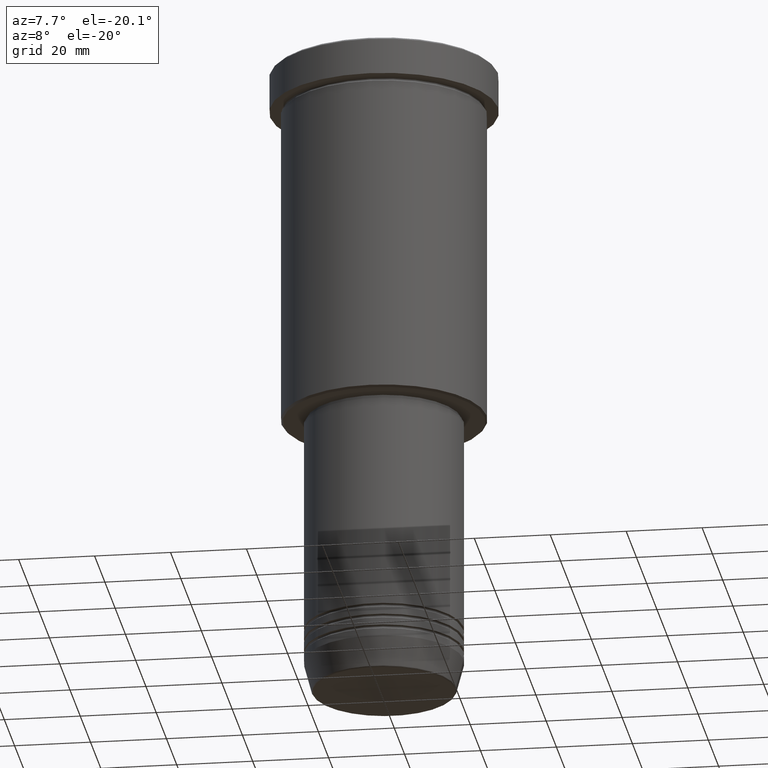
[diagram: clean part render]
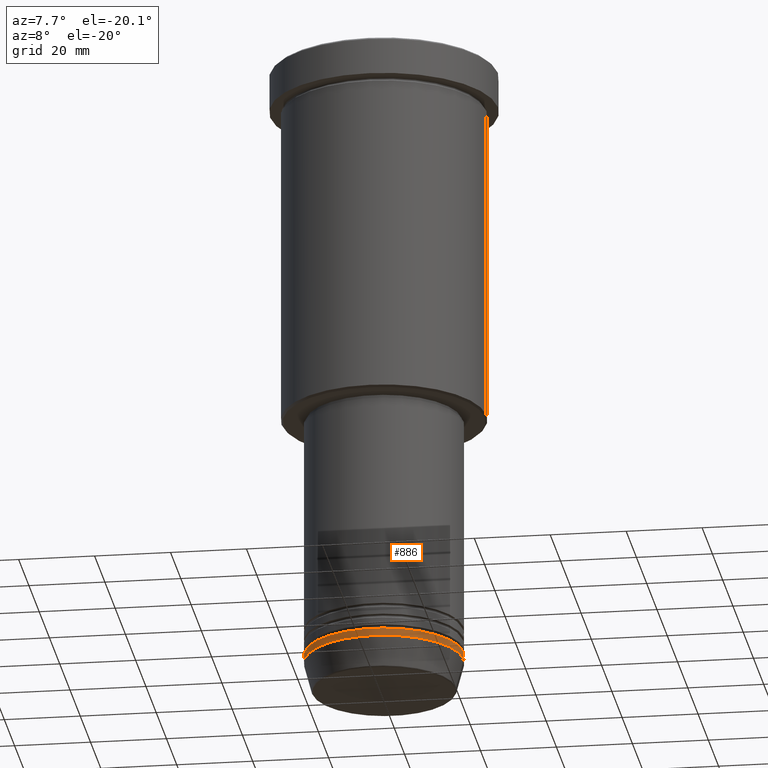
[diagram: same view with one face highlighted and labeled with its STEP entity id]
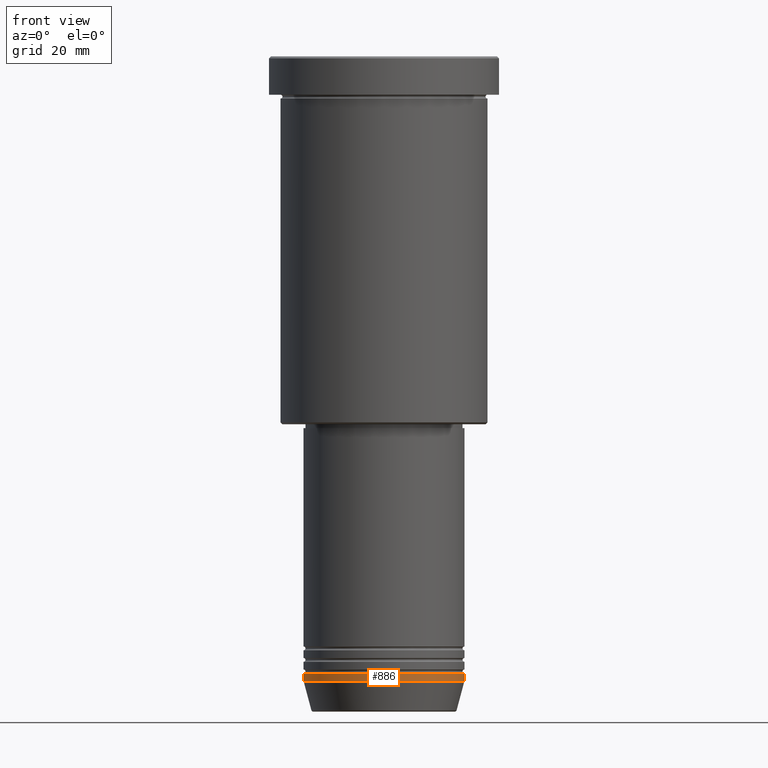
[diagram: same view with one face highlighted and labeled with its STEP entity id]
A machine part, auxiliary view. The second image highlights one B-rep face of the part: STEP entity #886.
A second angle (front view) of the same face is appended — the face is thin or edge-on in the first view.
In plain terms, the highlighted cylindrical surface (partial cylindrical patch) has radius 21 mm, axis along (-0, -0, 1).
Its self-contained STEP definition (entity closure, byte-faithful):
#1 = CIRCLE ( 'NONE', #1009, 21.00000000000000000 ) ;
#27 = CARTESIAN_POINT ( 'NONE',  ( 0.000000000000000000, 0.000000000000000000, 0.000000000000000000 ) ) ;
#73 = LINE ( 'NONE', #439, #1025 ) ;
#100 = LINE ( 'NONE', #283, #311 ) ;
#107 = EDGE_CURVE ( 'NONE', #1064, #795, #787, .T. ) ;
#111 = VERTEX_POINT ( 'NONE', #179 ) ;
#131 = CARTESIAN_POINT ( 'NONE',  ( -21.00000000000000000, 2.571758278209441661E-15, -161.0000000000000000 ) ) ;
#179 = CARTESIAN_POINT ( 'NONE',  ( 21.00000000000000000, 0.000000000000000000, -161.0000000000000000 ) ) ;
#263 = DIRECTION ( 'NONE',  ( 1.000000000000000000, 0.000000000000000000, 0.000000000000000000 ) ) ;
#273 = AXIS2_PLACEMENT_3D ( 'NONE', #709, #1081, #263 ) ;
#274 = ORIENTED_EDGE ( 'NONE', *, *, #645, .F. ) ;
#283 = CARTESIAN_POINT ( 'NONE',  ( 21.00000000000000000, 0.000000000000000000, 0.000000000000000000 ) ) ;
#289 = DIRECTION ( 'NONE',  ( 1.000000000000000000, 0.000000000000000000, 0.000000000000000000 ) ) ;
#311 = VECTOR ( 'NONE', #641, 1000.000000000000000 ) ;
#316 = DIRECTION ( 'NONE',  ( 1.000000000000000000, 0.000000000000000000, 0.000000000000000000 ) ) ;
#367 = VERTEX_POINT ( 'NONE', #131 ) ;
#439 = CARTESIAN_POINT ( 'NONE',  ( -21.00000000000000000, 2.571758278209441661E-15, 0.000000000000000000 ) ) ;
#463 = DIRECTION ( 'NONE',  ( -0.000000000000000000, -0.000000000000000000, 1.000000000000000000 ) ) ;
#523 = EDGE_LOOP ( 'NONE', ( #274, #759, #970, #540 ) ) ;
#540 = ORIENTED_EDGE ( 'NONE', *, *, #1172, .F. ) ;
#598 = FACE_OUTER_BOUND ( 'NONE', #523, .T. ) ;
#604 = CYLINDRICAL_SURFACE ( 'NONE', #1142, 21.00000000000000000 ) ;
#641 = DIRECTION ( 'NONE',  ( -0.000000000000000000, -0.000000000000000000, 1.000000000000000000 ) ) ;
#645 = EDGE_CURVE ( 'NONE', #1064, #367, #73, .T. ) ;
#709 = CARTESIAN_POINT ( 'NONE',  ( 0.000000000000000000, 0.000000000000000000, -163.0000000000000000 ) ) ;
#759 = ORIENTED_EDGE ( 'NONE', *, *, #107, .T. ) ;
#787 = CIRCLE ( 'NONE', #273, 21.00000000000000000 ) ;
#795 = VERTEX_POINT ( 'NONE', #840 ) ;
#840 = CARTESIAN_POINT ( 'NONE',  ( 21.00000000000000000, 0.000000000000000000, -163.0000000000000000 ) ) ;
#886 = ADVANCED_FACE ( 'NONE', ( #598 ), #604, .T. ) ;
#916 = CARTESIAN_POINT ( 'NONE',  ( 0.000000000000000000, 0.000000000000000000, -161.0000000000000000 ) ) ;
#970 = ORIENTED_EDGE ( 'NONE', *, *, #1152, .T. ) ;
#983 = CARTESIAN_POINT ( 'NONE',  ( -21.00000000000000000, 2.571758278209441661E-15, -163.0000000000000000 ) ) ;
#1009 = AXIS2_PLACEMENT_3D ( 'NONE', #916, #463, #289 ) ;
#1025 = VECTOR ( 'NONE', #1099, 1000.000000000000000 ) ;
#1064 = VERTEX_POINT ( 'NONE', #983 ) ;
#1081 = DIRECTION ( 'NONE',  ( -0.000000000000000000, -0.000000000000000000, 1.000000000000000000 ) ) ;
#1099 = DIRECTION ( 'NONE',  ( -0.000000000000000000, -0.000000000000000000, 1.000000000000000000 ) ) ;
#1142 = AXIS2_PLACEMENT_3D ( 'NONE', #27, #1149, #316 ) ;
#1149 = DIRECTION ( 'NONE',  ( -0.000000000000000000, -0.000000000000000000, 1.000000000000000000 ) ) ;
#1152 = EDGE_CURVE ( 'NONE', #795, #111, #100, .T. ) ;
#1172 = EDGE_CURVE ( 'NONE', #367, #111, #1, .T. ) ;